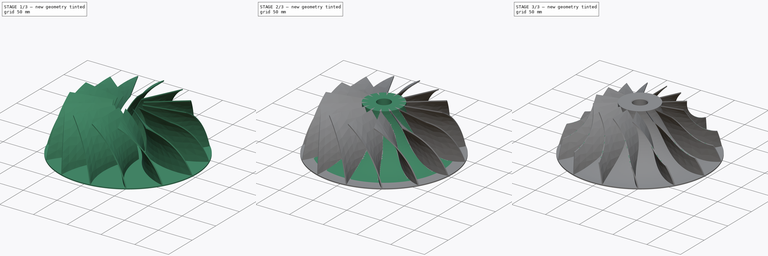
[diagram: build sequence overview — one tinted view per stage of 3, left to right]
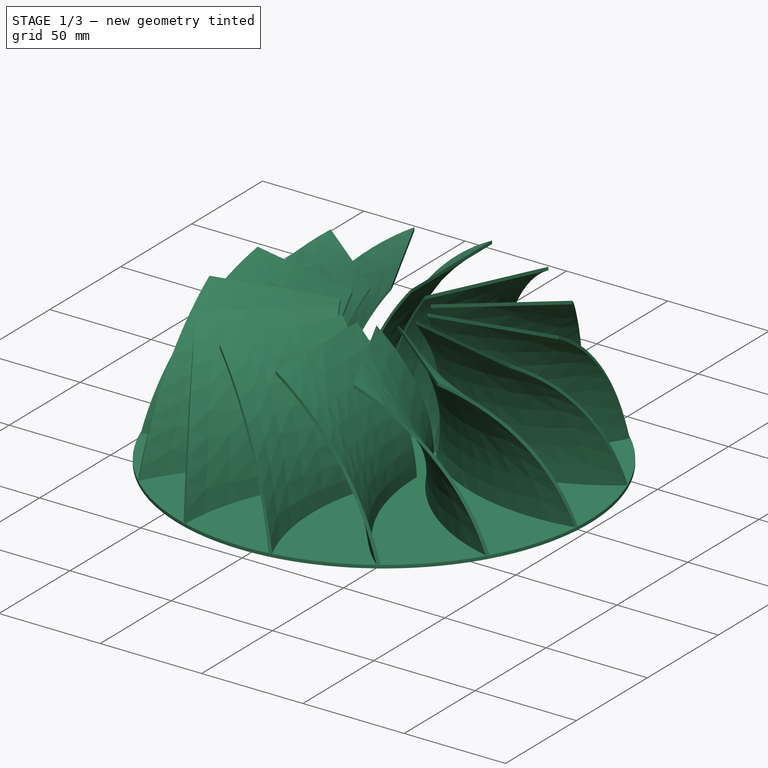
[diagram: stage 1 of 3 — iso view after this stage's code; geometry added in this stage tinted green]
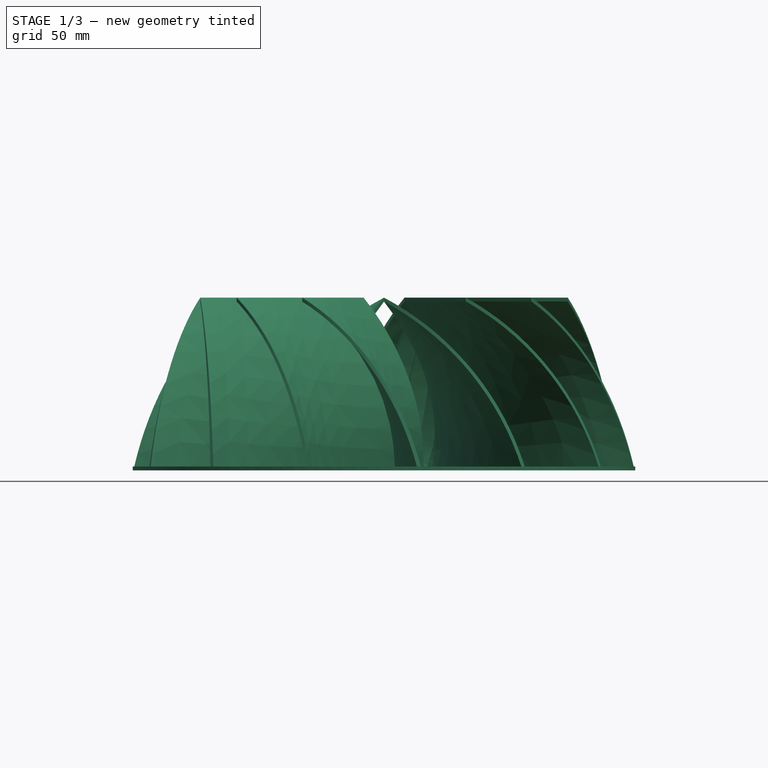
[diagram: stage 1 of 3 — front view after this stage's code; geometry added in this stage tinted green]
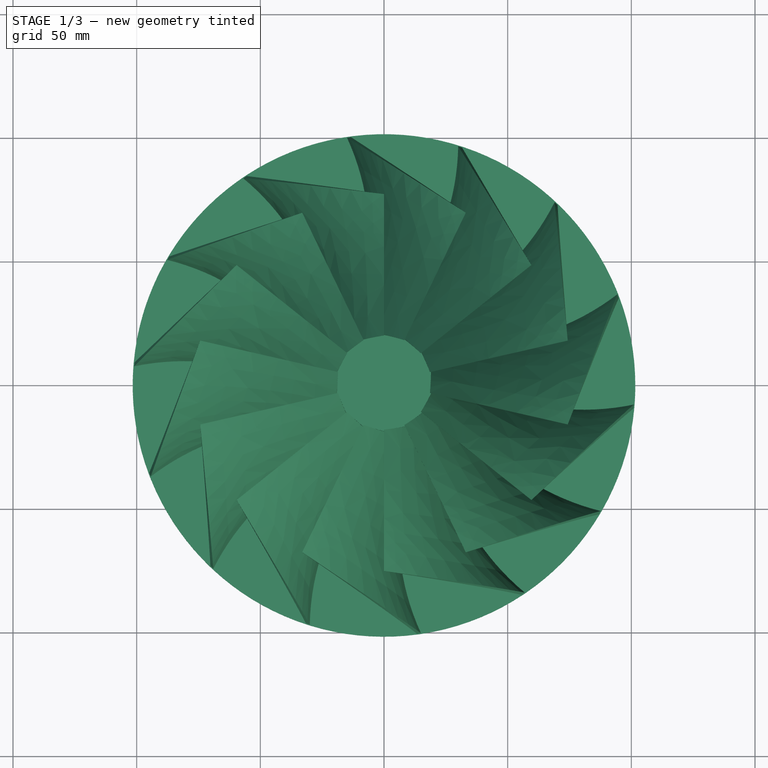
[diagram: stage 1 of 3 — top view after this stage's code; geometry added in this stage tinted green]
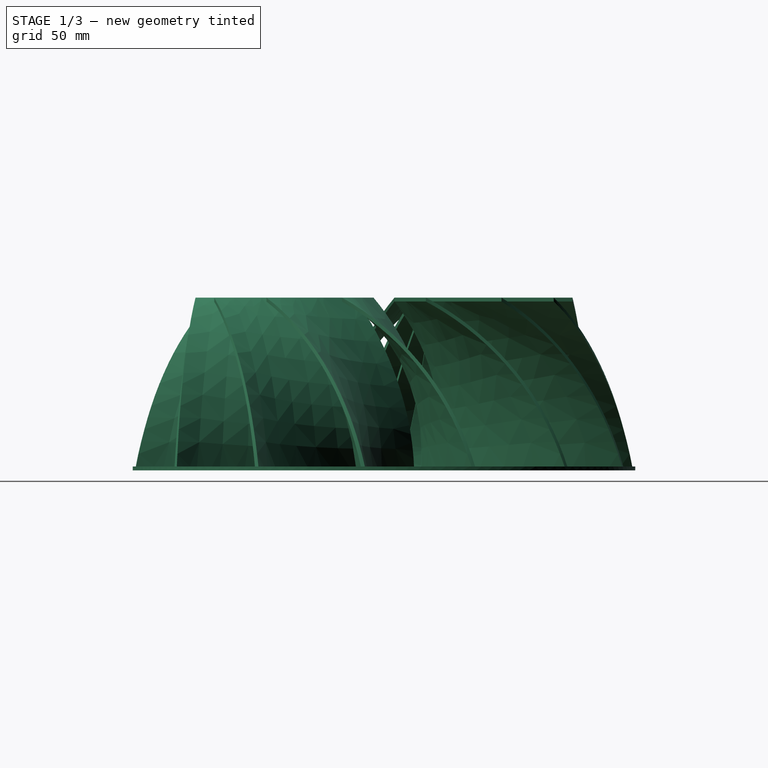
[diagram: stage 1 of 3 — right view after this stage's code; geometry added in this stage tinted green]
FCSTD DOCUMENT  (FreeCAD 0.19R24267 (Git))
Label: compressor
License: All rights reserved
LicenseURL: http://en.wikipedia.org/wiki/All_rights_reserved
objects: Sketcher::SketchObject×7, PartDesign::Chamfer×2, PartDesign::Plane×1, PartDesign::AdditivePipe×1, PartDesign::Pad×1, PartDesign::PolarPattern×1, PartDesign::Revolution×1, PartDesign::Pocket×1, PartDesign::Groove×1, PartDesign::Body×1, App::Part×1
note: 24 computed .brp shape members not serialized (recipe doc carries the construction recipe); baked Part::Feature solids carry a one-line shape summary decoded from their .brp

FEATURE [Sketcher::SketchObject] Sketch
  FullyConstrained = true
  MapMode = 5
  Support = -> [XY_Plane001]
  sketch-geometry (5):
    g0: Circle CenterX=0 CenterY=0 CenterZ=0 NormalX=0 NormalY=0 NormalZ=1 AngleXU=0 Radius=101.6
    g1: ArcOfCircle CenterX=120.65 CenterY=-6.35 CenterZ=0 NormalX=0 NormalY=0 NormalZ=1 AngleXU=0 Radius=101.6 StartAngle=3.14159 EndAngle=4.02307
    g2: ArcOfCircle CenterX=120.65 CenterY=-6.35 CenterZ=0 NormalX=0 NormalY=0 NormalZ=1 AngleXU=0 Radius=100.012 StartAngle=3.14159 EndAngle=4.0278
    g3: LineSegment StartX=19.05 StartY=-6.35 StartZ=0 EndX=20.6375 EndY=-6.35 EndZ=0
    g4: LineSegment StartX=56.0314 StartY=-84.7528 StartZ=0 EndX=57.4065 EndY=-83.8275 EndZ=0
  constraints (15):
    c: Coincident(g0,g-1)
    c: Radius(g0) = 101.6
    c: Coincident(g2,g1)
    c: Horizontal(g1,g2)
    c: Horizontal(g2,g1)
    c: DistanceY(g1,g-1) = 6.35
    c: DistanceX(g-1,g1) = 19.05
    c: DistanceX(g1,g2) = 1.5875
    c: Radius(g1) = 101.6
    c: PointOnObject(g1,g0)
    c: PointOnObject(g2,g0)
    c: Coincident(g3,g1)
    c: Coincident(g3,g2)
    c: Coincident(g4,g1)
    c: Coincident(g4,g2)
FEATURE [Sketcher::SketchObject] Sketch001
  FullyConstrained = true
  MapMode = 5
  Placement = pos=(0,0,0) rot=(0.57735,0.57735,0.57735;2.0944rad)
  Support = -> [YZ_Plane001]
  sketch-geometry (4):
    g0: LineSegment StartX=-76.2 StartY=69.85 StartZ=0 EndX=-19.05 EndY=69.85 EndZ=0
    g1: LineSegment StartX=-19.05 StartY=69.85 StartZ=0 EndX=-19.05 EndY=68.2625 EndZ=0
    g2: LineSegment StartX=-19.05 StartY=68.2625 StartZ=0 EndX=-76.2 EndY=68.2625 EndZ=0
    g3: LineSegment StartX=-76.2 StartY=68.2625 StartZ=0 EndX=-76.2 EndY=69.85 EndZ=0
  constraints (12):
    c: Coincident(g0,g1)
    c: Coincident(g1,g2)
    c: Coincident(g2,g3)
    c: Coincident(g3,g0)
    c: Horizontal(g0)
    c: Horizontal(g2)
    c: Vertical(g1)
    c: Vertical(g3)
    c: DistanceY(g2,g0) = 1.5875
    c: DistanceY(g-1,g0) = 69.85
    c: DistanceX(g2,g-1) = 76.2
    c: DistanceX(g1,g-1) = 19.05
FEATURE [PartDesign::Plane] DatumPlane
  Length = 257.616
  MapMode = 13
  Placement = pos=(19.1355,-78.7425,46.0375) rot=(0.995654,-0.065856,-0.065856;1.57515rad)
  ResizeMode = 0
  Support = -> [Sketch001,Sketch]
  Width = 124.274
FEATURE [Sketcher::SketchObject] Sketch002
  ExternalGeometry = -> [Sketch001,Sketch]
  FullyConstrained = true
  MapMode = 5
  Placement = pos=(19.1355,-78.7425,46.0375) rot=(0.995654,-0.065856,-0.065856;1.57515rad)
  Support = -> [DatumPlane]
  sketch-geometry (1):
    g0: ArcOfCircle CenterX=-74.136 CenterY=-80.9496 CenterZ=0 NormalX=0 NormalY=0 NormalZ=1 AngleXU=0 Radius=116.84 StartAngle=0.303438 EndAngle=1.0823
  constraints (3):
    c: Coincident(g0,g-3)
    c: Coincident(g0,g-4)
    c: Radius(g0) = 116.84
FEATURE [PartDesign::AdditivePipe] AdditivePipe
  AuxilleryCurvelinear = true
  AuxillerySpineTangent = false
  Binormal = (0,0,0)
  Mode = 0
  Profile = -> Sketch
  Sections = -> [Sketch001]
  Spine = -> Sketch002
  SpineTangent = false
  Transformation = 1
  Transition = 0
FEATURE [Sketcher::SketchObject] Sketch003
  FullyConstrained = true
  MapMode = 5
  Support = -> [XY_Plane001]
  sketch-geometry (1):
    g0: Circle CenterX=0 CenterY=0 CenterZ=0 NormalX=0 NormalY=0 NormalZ=1 AngleXU=0 Radius=101.6
  constraints (2):
    c: Coincident(g0,g-1)
    c: Radius(g0) = 101.6
FEATURE [PartDesign::Pad] Pad
  BaseFeature = -> AdditivePipe
  Direction = (1,1,1)
  Length = 1.5875
  Length2 = 100.076
  Profile = -> Sketch003
  Type = 0
FEATURE [PartDesign::PolarPattern] PolarPattern
  Angle = 360
  Axis = -> Sketch [N_Axis]
  BaseFeature = -> Pad
  Occurrences = 14
  Originals = -> [AdditivePipe]
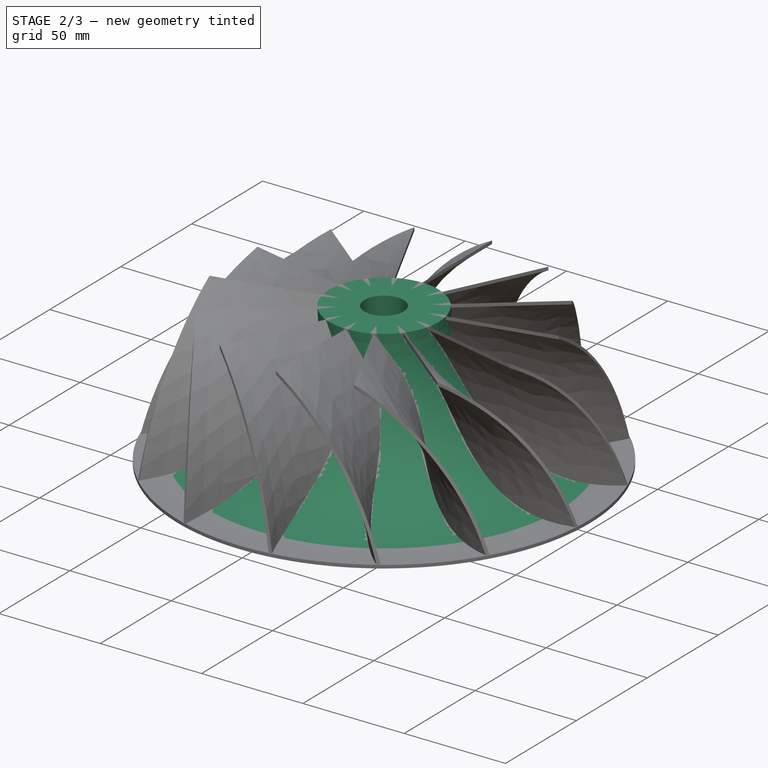
[diagram: stage 2 of 3 — iso view after this stage's code; geometry added in this stage tinted green]
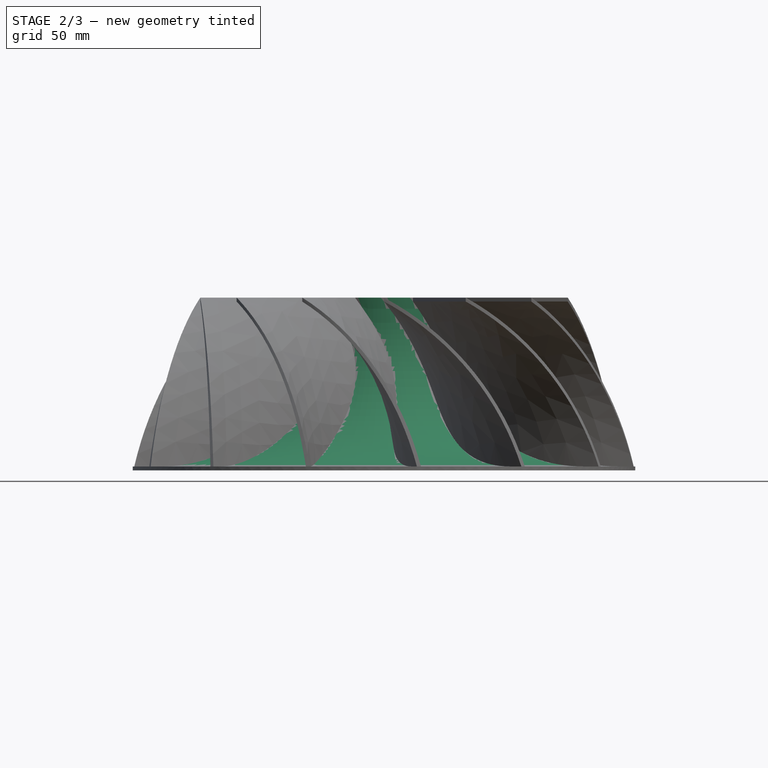
[diagram: stage 2 of 3 — front view after this stage's code; geometry added in this stage tinted green]
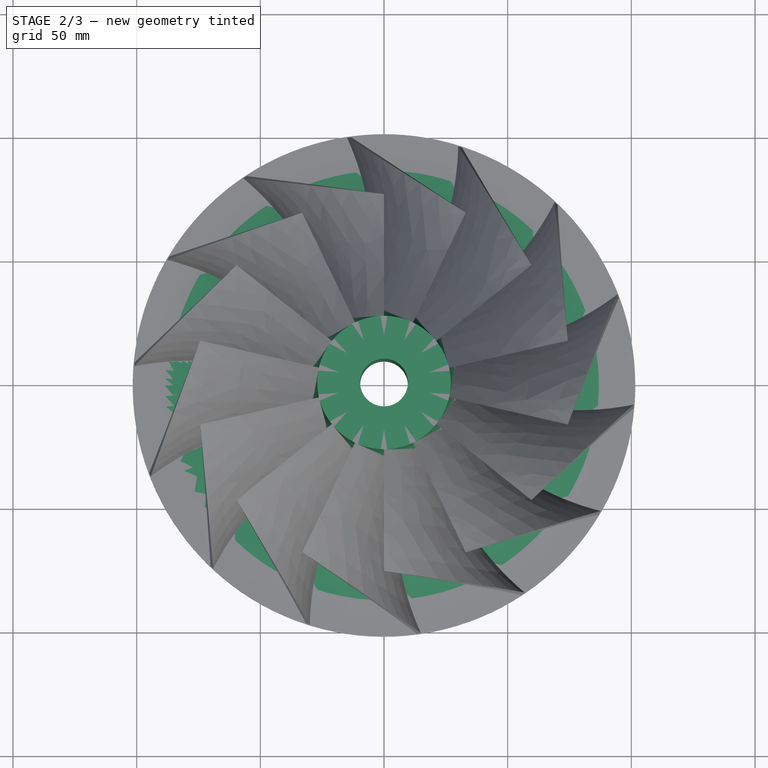
[diagram: stage 2 of 3 — top view after this stage's code; geometry added in this stage tinted green]
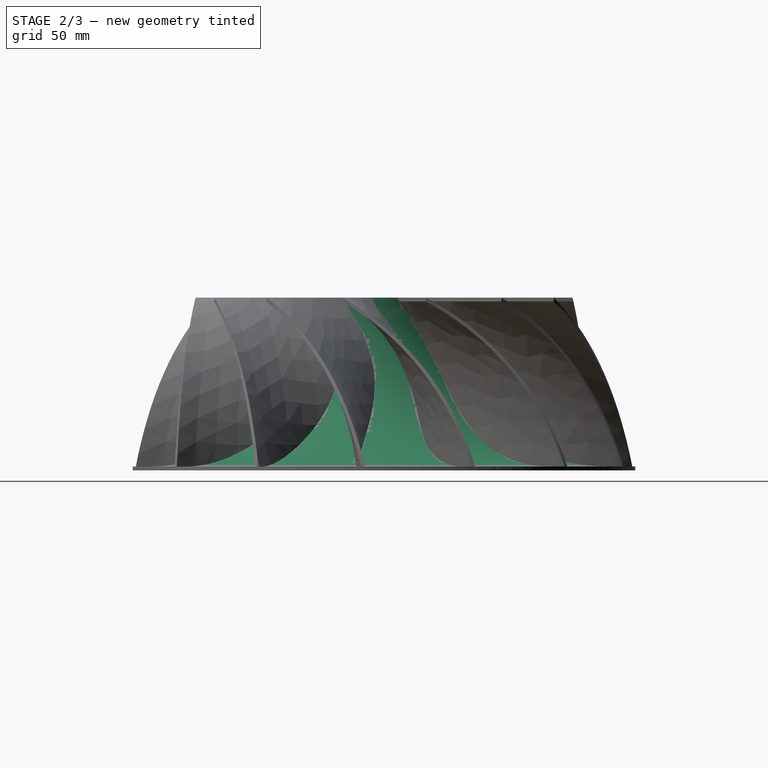
[diagram: stage 2 of 3 — right view after this stage's code; geometry added in this stage tinted green]
FEATURE [Sketcher::SketchObject] Sketch004
  FullyConstrained = true
  MapMode = 5
  Placement = pos=(0,0,0) rot=(1,0,0;1.5708rad)
  Support = -> [XZ_Plane001]
  sketch-geometry (4):
    g0: LineSegment StartX=-95.25 StartY=1.5875 StartZ=0 EndX=-9.652 EndY=1.5875 EndZ=0
    g1: LineSegment StartX=-9.652 StartY=1.5875 StartZ=0 EndX=-9.652 EndY=69.85 EndZ=0
    g2: LineSegment StartX=-9.652 StartY=69.85 StartZ=0 EndX=-26.9875 EndY=69.85 EndZ=0
    g3: ArcOfCircle CenterX=-95.25 CenterY=69.85 CenterZ=0 NormalX=0 NormalY=0 NormalZ=1 AngleXU=0 Radius=68.2625 StartAngle=4.71239 EndAngle=6.28319
  constraints (13):
    c: Horizontal(g0)
    c: Coincident(g0,g1)
    c: Vertical(g1)
    c: Coincident(g1,g2)
    c: Horizontal(g2)
    c: Coincident(g3,g2)
    c: Coincident(g3,g0)
    c: DistanceY(g-1,g0) = 1.5875
    c: DistanceX(g0,g-1) = 9.652
    c: DistanceY(g-1,g1) = 69.85
    c: DistanceX(g0,g-1) = 95.25
    c: Tangent(g3,g0)
    c: PointOnObject(g3,g2)
FEATURE [PartDesign::Revolution] Revolution
  Angle = 360
  Axis = (0,2e-16,1)
  Base = (0,0,0)
  BaseFeature = -> PolarPattern
  Profile = -> Sketch004
  ReferenceAxis = -> Sketch004 [V_Axis]
FEATURE [Sketcher::SketchObject] Sketch005
  ExternalGeometry = -> [Revolution]
  FullyConstrained = true
  MapMode = 5
  Placement = pos=(0,1.54e-14,69.85) rot=(0,0,1;0rad)
  Support = -> [Revolution]
  sketch-geometry (1):
    g0: Circle CenterX=0 CenterY=0 CenterZ=0 NormalX=0 NormalY=0 NormalZ=1 AngleXU=0 Radius=9.652
  constraints (2):
    c: Coincident(g0,g-1)
    c: Equal(g0,g-3)
FEATURE [PartDesign::Pocket] Pocket
  BaseFeature = -> Revolution
  Length = 5.08
  Length2 = 100.076
  Profile = -> Sketch005
  Type = 1
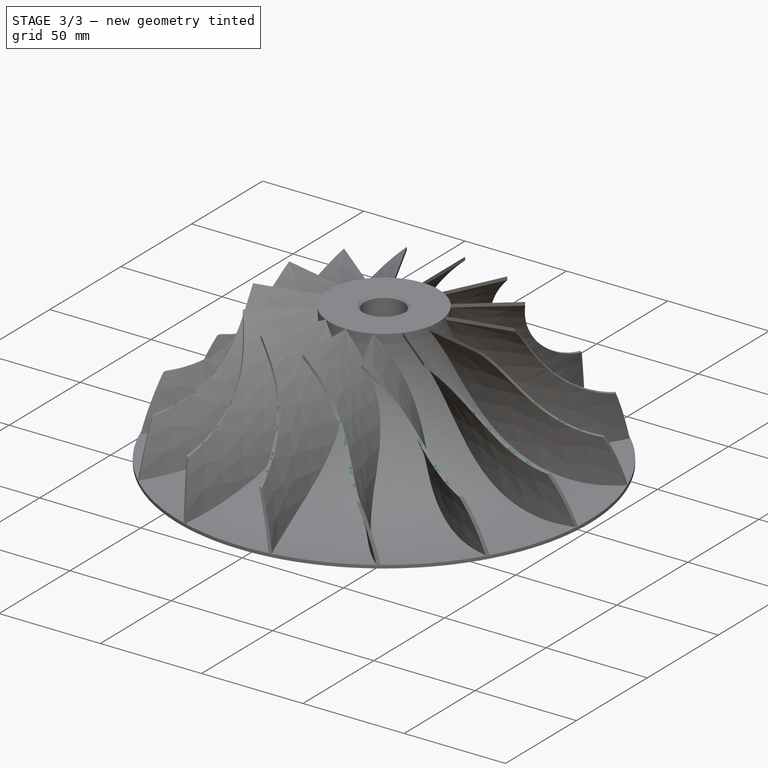
[diagram: stage 3 of 3 — iso view after this stage's code; geometry added in this stage tinted green]
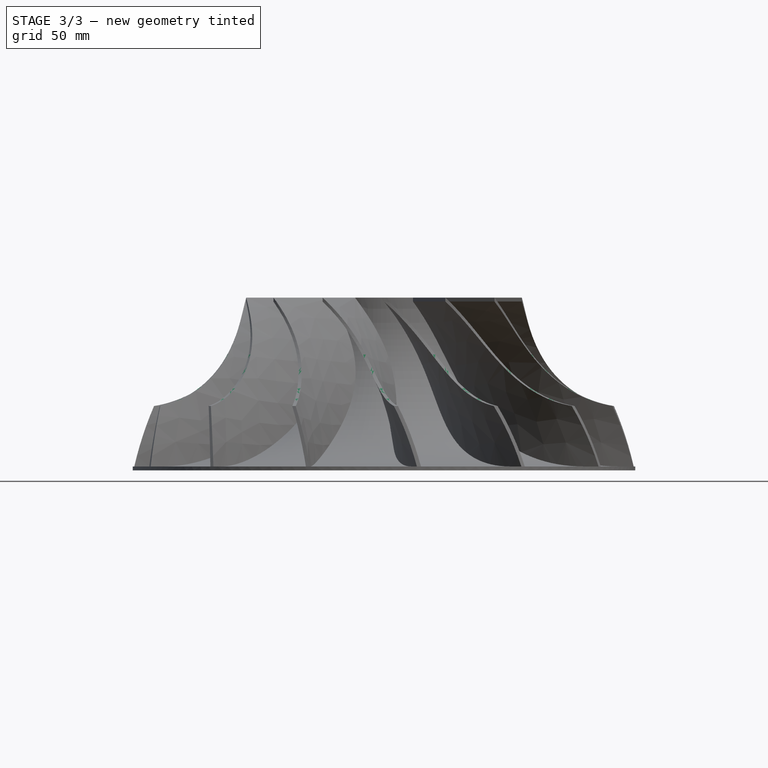
[diagram: stage 3 of 3 — front view after this stage's code; geometry added in this stage tinted green]
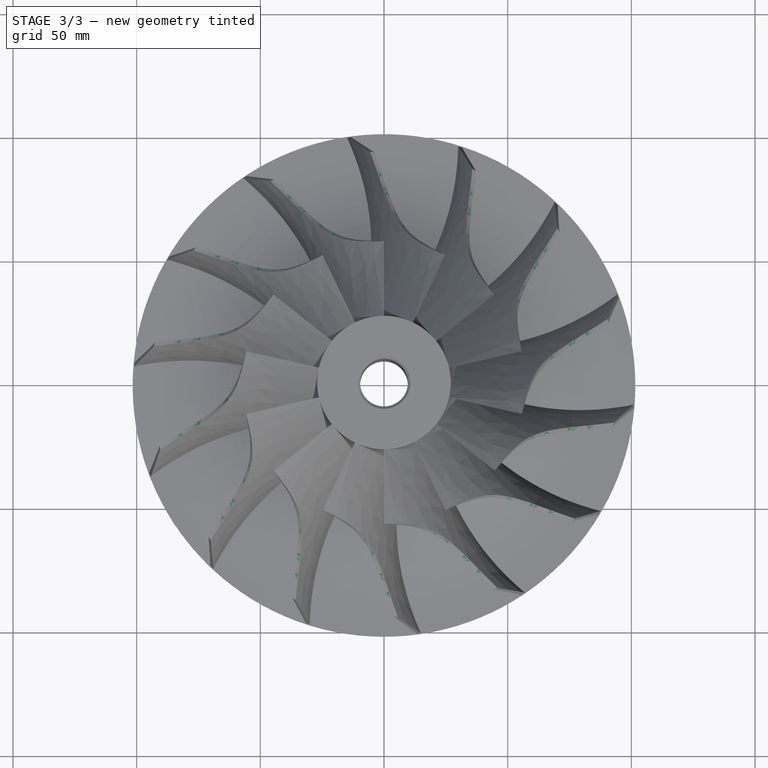
[diagram: stage 3 of 3 — top view after this stage's code; geometry added in this stage tinted green]
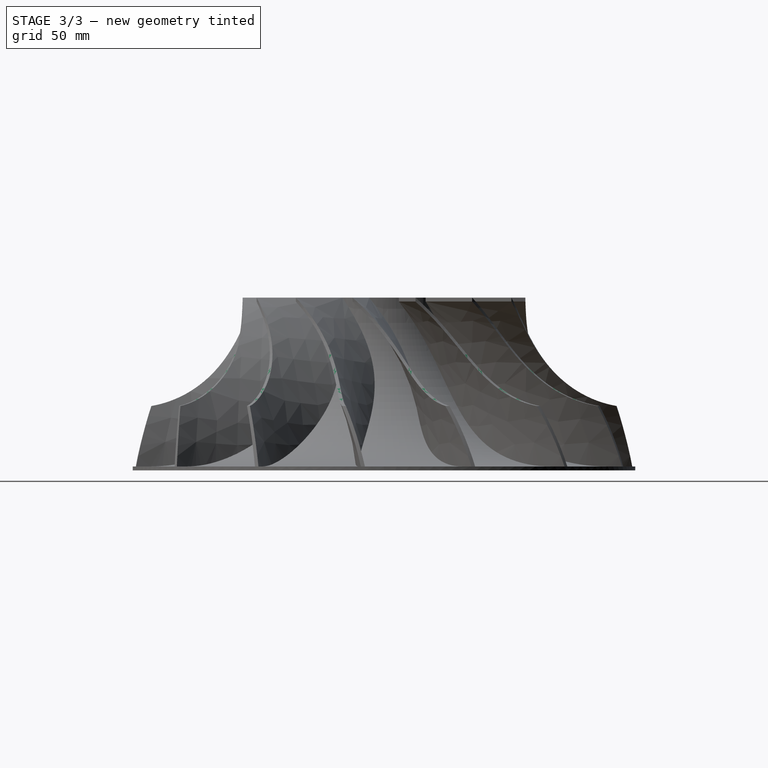
[diagram: stage 3 of 3 — right view after this stage's code; geometry added in this stage tinted green]
FEATURE [Sketcher::SketchObject] Sketch006
  FullyConstrained = true
  MapMode = 5
  Placement = pos=(0,0,0) rot=(1,0,0;1.5708rad)
  Support = -> [XZ_Plane001]
  sketch-geometry (5):
    g0: LineSegment StartX=-101.6 StartY=0 StartZ=0 EndX=-101.6 EndY=25.4 EndZ=0
    g1: ArcOfCircle CenterX=-101.6 CenterY=69.85 CenterZ=0 NormalX=0 NormalY=0 NormalZ=1 AngleXU=0 Radius=44.45 StartAngle=4.71239 EndAngle=6.28319
    g2: LineSegment StartX=-57.15 StartY=69.85 StartZ=0 EndX=-57.15 EndY=82.55 EndZ=0
    g3: LineSegment StartX=-101.6 StartY=25.4 StartZ=0 EndX=-101.6 EndY=82.55 EndZ=0
    g4: LineSegment StartX=-101.6 StartY=82.55 StartZ=0 EndX=-57.15 EndY=82.55 EndZ=0
  constraints (16):
    c: Vertical(g0)
    c: Coincident(g1,g0)
    c: DistanceY(g-1,g1) = 69.85
    c: Coincident(g2,g1)
    c: Vertical(g2)
    c: DistanceY(g-1,g1) = 25.4
    c: DistanceX(g1,g-1) = 57.15
    c: DistanceY(g2,g2) = 12.7
    c: Coincident(g3,g1)
    c: Vertical(g3)
    c: Coincident(g4,g3)
    c: Coincident(g4,g2)
    c: Horizontal(g4)
    c: Perpendicular(g1,g0)
    c: DistanceX(g0,g-1) = 101.6
    c: PointOnObject(g0,g-1)
FEATURE [PartDesign::Groove] Groove
  Angle = 360
  Axis = (0,2e-16,1)
  Base = (0,0,0)
  BaseFeature = -> Pocket
  Profile = -> Sketch006
  ReferenceAxis = -> Sketch006 [V_Axis]
  Reversed = true
FEATURE [PartDesign::Chamfer] Chamfer
  Angle = 45
  Base = -> Groove [Edge150,Edge152]
  BaseFeature = -> Groove
  ChamferType = 0
  FlipDirection = false
  Size = 1
  Size2 = 1
  SupportTransform = false
FEATURE [PartDesign::Chamfer] Chamfer001
  Angle = 45
  Base = -> Chamfer [Edge11]
  BaseFeature = -> Chamfer
  ChamferType = 0
  FlipDirection = false
  Size = 1
  Size2 = 1
  SupportTransform = false
FEATURE [PartDesign::Body] Body
  Group = -> [Sketch,Sketch001,DatumPlane,Sketch002,AdditivePipe,Sketch003,Pad,PolarPattern,Sketch004,Revolution,Sketch005,Pocket,Sketch006,Groove,Chamfer,Chamfer001]
  Origin = -> Origin001
  Tip = -> Chamfer001
FEATURE [App::Part] Part
  Group = -> [Body]
  Origin = -> Origin
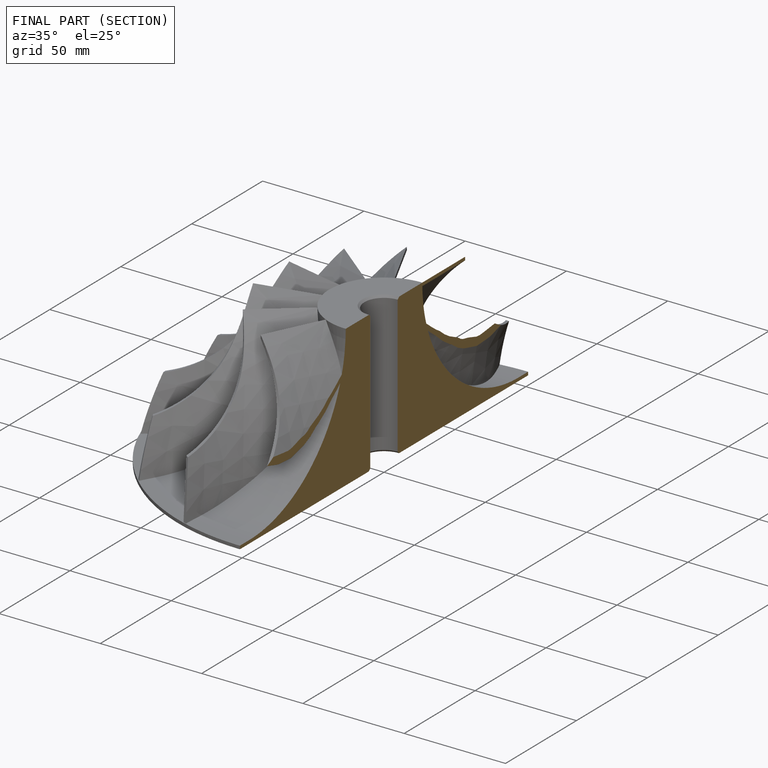
[diagram: finished part — half-section view (interior)]
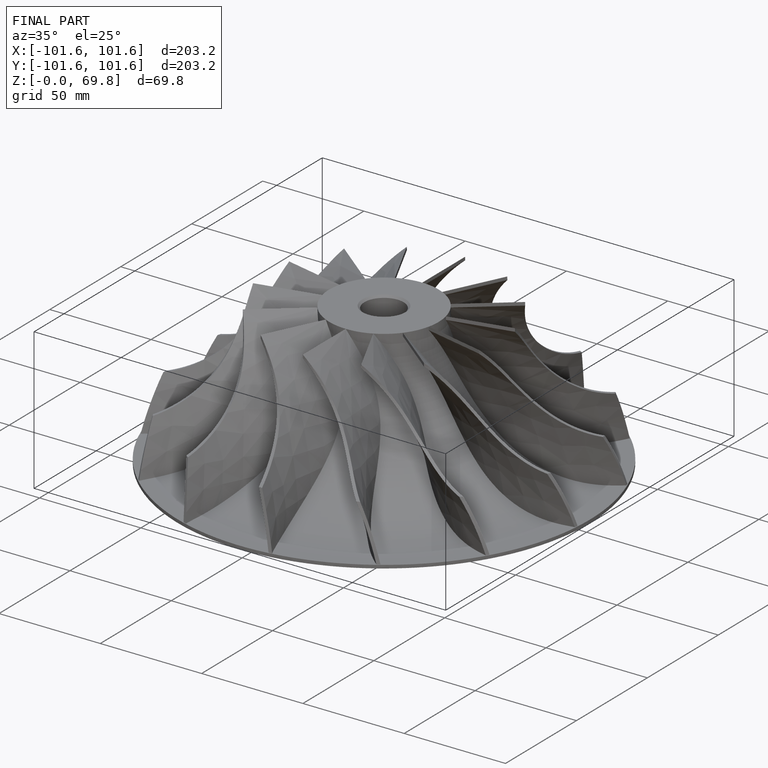
[diagram: finished part — iso view with bounding-box wireframe]
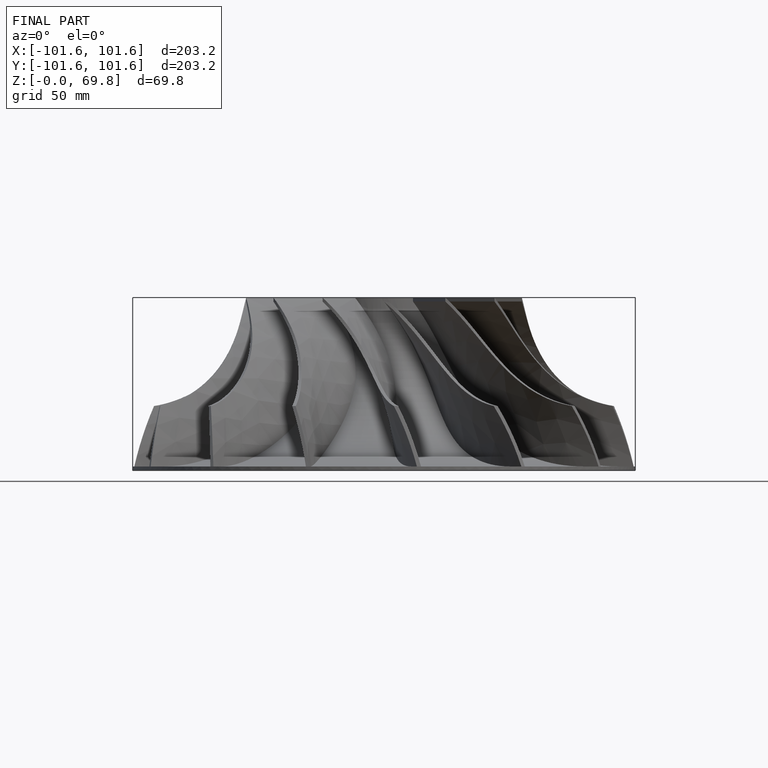
[diagram: finished part — front view with bounding-box wireframe]
